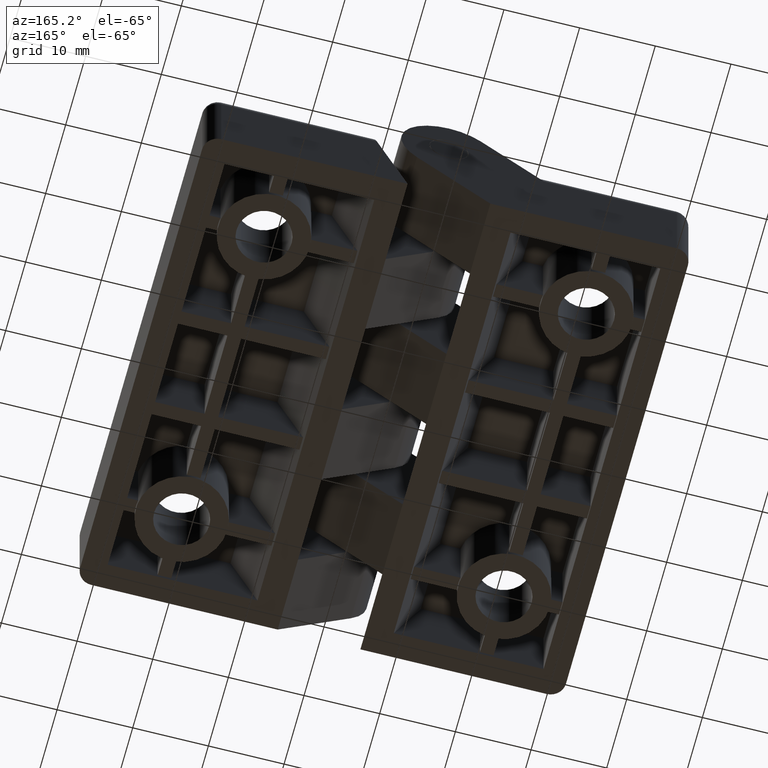
[diagram: clean part render]
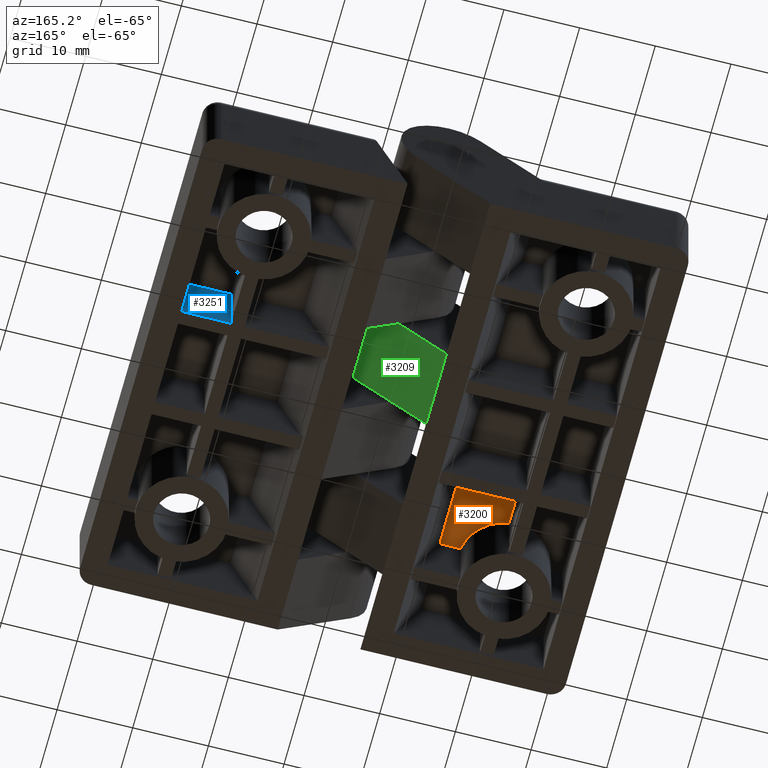
[diagram: same view with three faces highlighted in distinct colors, each labeled with its STEP entity id]
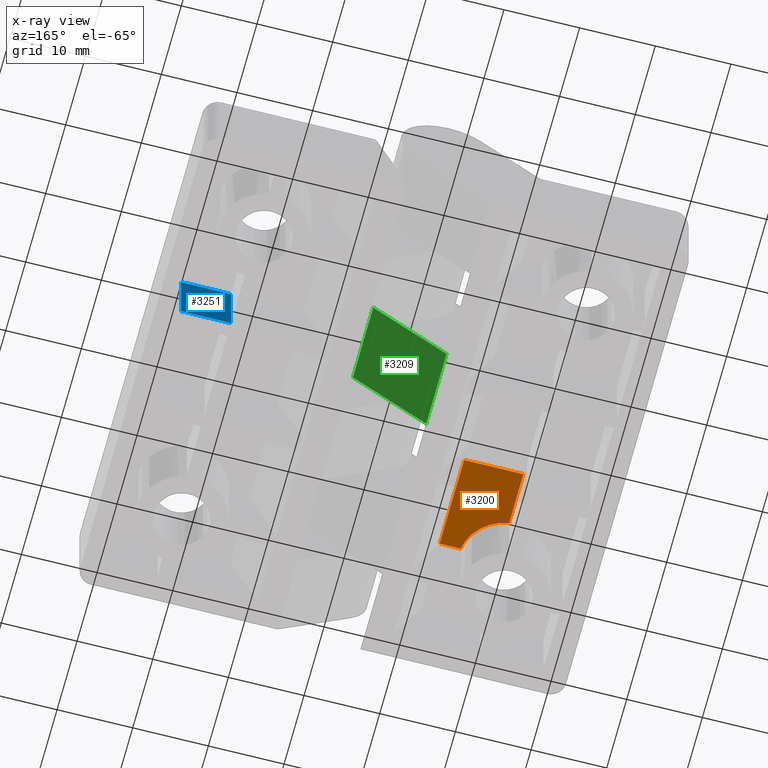
[diagram: x-ray of the same camera — body ghosted, the three highlighted faces saturated]
A machine part, auxiliary view with three faces highlighted in distinct colors.
The next image is the same camera in x-ray (body ghosted, the three faces saturated) — at least one of them is partly hidden behind the body in this view.
Their STEP definitions:

[orange] entity #3200 — the highlighted planar face has unit normal (0, 0, 1).
#134=PLANE('',#3428);
#294=FACE_OUTER_BOUND('',#489,.T.);
#489=EDGE_LOOP('',(#2530,#2531,#2532,#2533,#2534));
#674=CIRCLE('',#3423,6.05);
#817=LINE('',#4778,#1171);
#830=LINE('',#4803,#1184);
#850=LINE('',#4847,#1204);
#872=LINE('',#4902,#1226);
#1171=VECTOR('',#3826,7.828280560615);
#1184=VECTOR('',#3845,12.2);
#1204=VECTOR('',#3885,2.7455972161616);
#1226=VECTOR('',#3939,7.1173166555466);
#1533=VERTEX_POINT('',#4775);
#1534=VERTEX_POINT('',#4777);
#1543=VERTEX_POINT('',#4801);
#1556=VERTEX_POINT('',#4844);
#1574=VERTEX_POINT('',#4901);
#1861=EDGE_CURVE('',#1534,#1533,#817,.T.);
#1874=EDGE_CURVE('',#1533,#1543,#830,.T.);
#1895=EDGE_CURVE('',#1543,#1556,#850,.T.);
#1922=EDGE_CURVE('',#1574,#1534,#872,.T.);
#1930=EDGE_CURVE('',#1556,#1574,#674,.T.);
#2530=ORIENTED_EDGE('',*,*,#1861,.T.);
#2531=ORIENTED_EDGE('',*,*,#1874,.T.);
#2532=ORIENTED_EDGE('',*,*,#1895,.T.);
#2533=ORIENTED_EDGE('',*,*,#1930,.T.);
#2534=ORIENTED_EDGE('',*,*,#1922,.T.);
#3200=ADVANCED_FACE('',(#294),#134,.F.);
#3423=AXIS2_PLACEMENT_3D('',#4916,#3959,#3960);
#3428=AXIS2_PLACEMENT_3D('',#4923,#3971,#3972);
#3826=DIRECTION('',(1.,0.,-2.39444996755761E-16));
#3845=DIRECTION('',(0.,-1.,0.));
#3885=DIRECTION('',(-1.,0.,2.39444996755761E-16));
#3939=DIRECTION('',(0.,1.,0.));
#3959=DIRECTION('center_axis',(2.39444996755761E-16,0.,1.));
#3960=DIRECTION('ref_axis',(1.,0.,-2.39444996755761E-16));
#3971=DIRECTION('center_axis',(2.39444996755761E-16,0.,1.));
#3972=DIRECTION('ref_axis',(-1.,0.,0.));
#4775=CARTESIAN_POINT('',(-12.571719439385,-7.5,-4.09999999998711));
#4777=CARTESIAN_POINT('',(-20.4,-7.5,-4.09999999998711));
#4778=CARTESIAN_POINT('',(-21.4968820829789,-7.5,-4.09999999998711));
#4801=CARTESIAN_POINT('',(-12.571719439385,-19.7,-4.09999999998711));
#4803=CARTESIAN_POINT('',(-12.571719439385,0.,-4.09999999998711));
#4844=CARTESIAN_POINT('',(-15.3173166555466,-19.7,-4.09999999998711));
#4847=CARTESIAN_POINT('',(-9.89410855476885,-19.7,-4.09999999998711));
#4901=CARTESIAN_POINT('',(-20.4,-14.6173166555466,-4.09999999998711));
#4902=CARTESIAN_POINT('',(-20.4,-9.85,-4.09999999998711));
#4916=CARTESIAN_POINT('Origin',(-21.3,-20.6,-4.09999999998711));
#4923=CARTESIAN_POINT('Origin',(-12.571719439385,0.,-4.09999999998711));

[blue] entity #3251 — the highlighted planar face has unit normal (0, 1, 0).
#165=PLANE('',#3514);
#345=FACE_OUTER_BOUND('',#561,.T.);
#561=EDGE_LOOP('',(#2738,#2739,#2740,#2741));
#945=LINE('',#5150,#1299);
#946=LINE('',#5152,#1300);
#947=LINE('',#5154,#1301);
#948=LINE('',#5155,#1302);
#1299=VECTOR('',#4212,8.79999999999999);
#1300=VECTOR('',#4213,6.6);
#1301=VECTOR('',#4214,8.79999999999999);
#1302=VECTOR('',#4215,6.6);
#1648=VERTEX_POINT('',#5148);
#1649=VERTEX_POINT('',#5149);
#1650=VERTEX_POINT('',#5151);
#1651=VERTEX_POINT('',#5153);
#2035=EDGE_CURVE('',#1648,#1649,#945,.T.);
#2036=EDGE_CURVE('',#1650,#1648,#946,.T.);
#2037=EDGE_CURVE('',#1651,#1650,#947,.T.);
#2038=EDGE_CURVE('',#1649,#1651,#948,.T.);
#2738=ORIENTED_EDGE('',*,*,#2035,.F.);
#2739=ORIENTED_EDGE('',*,*,#2036,.F.);
#2740=ORIENTED_EDGE('',*,*,#2037,.F.);
#2741=ORIENTED_EDGE('',*,*,#2038,.F.);
#3251=ADVANCED_FACE('',(#345),#165,.T.);
#3514=AXIS2_PLACEMENT_3D('',#5147,#4210,#4211);
#4210=DIRECTION('center_axis',(0.,1.,0.));
#4211=DIRECTION('ref_axis',(-1.,0.,0.));
#4212=DIRECTION('',(0.,0.,1.));
#4213=DIRECTION('',(1.,0.,0.));
#4214=DIRECTION('',(0.,0.,-1.));
#4215=DIRECTION('',(-1.,0.,-2.39444996755761E-16));
#5147=CARTESIAN_POINT('Origin',(30.4220447265728,7.5,-12.8999999999871));
#5148=CARTESIAN_POINT('',(28.8,7.5,-12.8999999999871));
#5149=CARTESIAN_POINT('',(28.8,7.5,-4.09999999998711));
#5150=CARTESIAN_POINT('',(28.8,7.5,-15.9512139404821));
#5151=CARTESIAN_POINT('',(22.2,7.5,-12.8999999999871));
#5152=CARTESIAN_POINT('',(7.00000010430813,7.5,-12.8999999999871));
#5153=CARTESIAN_POINT('',(22.2,7.5,-4.09999999998711));
#5154=CARTESIAN_POINT('',(22.2,7.5,-12.8999999999871));
#5155=CARTESIAN_POINT('',(29.6110223632864,7.5,-4.09999999998711));

[green] entity #3209 — the highlighted planar face has unit normal (0.6691, -0, -0.7431).
#143=PLANE('',#3439);
#303=FACE_OUTER_BOUND('',#501,.T.);
#501=EDGE_LOOP('',(#2574,#2575,#2576,#2577));
#748=LINE('',#4595,#1102);
#884=LINE('',#4942,#1238);
#887=LINE('',#4951,#1241);
#888=LINE('',#4952,#1242);
#1102=VECTOR('',#3671,10.2);
#1238=VECTOR('',#3995,13.0291214007084);
#1241=VECTOR('',#4004,10.2);
#1242=VECTOR('',#4005,13.0291214007084);
#1462=VERTEX_POINT('',#4592);
#1463=VERTEX_POINT('',#4594);
#1580=VERTEX_POINT('',#4940);
#1583=VERTEX_POINT('',#4950);
#1774=EDGE_CURVE('',#1463,#1462,#748,.T.);
#1942=EDGE_CURVE('',#1462,#1580,#884,.T.);
#1946=EDGE_CURVE('',#1580,#1583,#887,.T.);
#1947=EDGE_CURVE('',#1583,#1463,#888,.T.);
#2574=ORIENTED_EDGE('',*,*,#1942,.T.);
#2575=ORIENTED_EDGE('',*,*,#1946,.T.);
#2576=ORIENTED_EDGE('',*,*,#1947,.T.);
#2577=ORIENTED_EDGE('',*,*,#1774,.T.);
#3209=ADVANCED_FACE('',(#303),#143,.T.);
#3439=AXIS2_PLACEMENT_3D('',#4949,#4002,#4003);
#3671=DIRECTION('',(1.22464679914735E-16,1.,0.));
#3995=DIRECTION('',(0.743144825477395,7.94127859200528E-17,0.669130606358858));
#4002=DIRECTION('center_axis',(0.669130606358858,-8.19448655288903E-17,
-0.743144825477395));
#4003=DIRECTION('ref_axis',(0.743144825477395,-9.10089931823809E-17,0.669130606358857));
#4004=DIRECTION('',(-1.22464679914735E-16,-1.,0.));
#4005=DIRECTION('',(-0.743144825477395,-7.94127859200527E-17,-0.669130606358858));
#4592=CARTESIAN_POINT('',(-5.46700543455492,10.58,-13.3999999999871));
#4594=CARTESIAN_POINT('',(-5.46700543455491,0.38,-13.3999999999871));
#4595=CARTESIAN_POINT('',(-5.46700543455491,6.69515070634886E-16,-13.3999999999871));
#4940=CARTESIAN_POINT('',(4.2155187148983,10.58,-4.68181609680795));
#4942=CARTESIAN_POINT('',(-2.06115349901195,10.58,-10.3333571429446));
#4949=CARTESIAN_POINT('Origin',(-5.46700543455491,6.69515070634886E-16,
-13.3999999999871));
#4950=CARTESIAN_POINT('',(4.2155187148983,0.380000000000003,-4.68181609680795));
#4951=CARTESIAN_POINT('',(4.2155187148983,-5.16252150094596E-16,-4.68181609680795));
#4952=CARTESIAN_POINT('',(-2.06115349901195,0.380000000000002,-10.3333571429446));